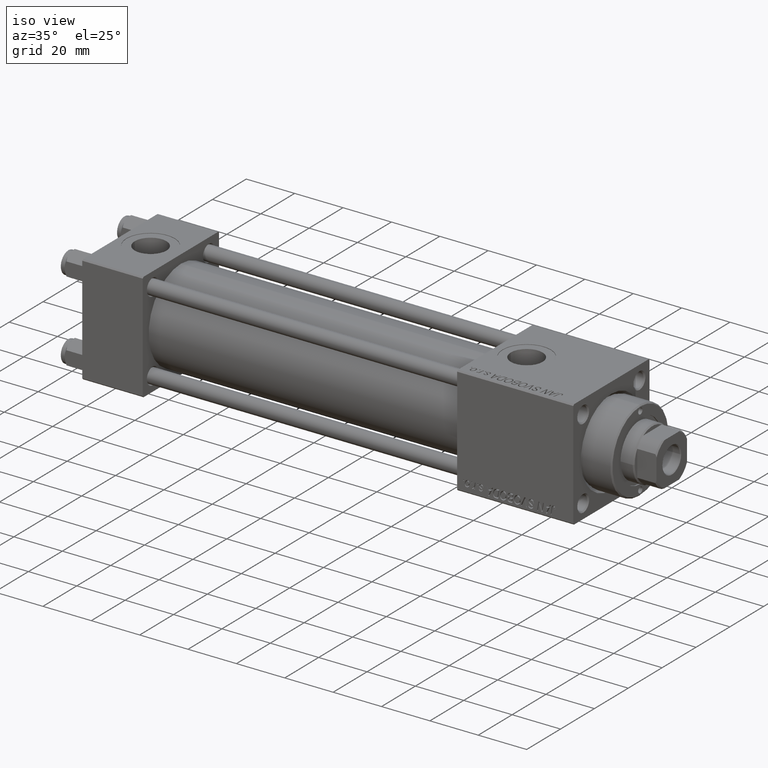
[diagram: clean part render]
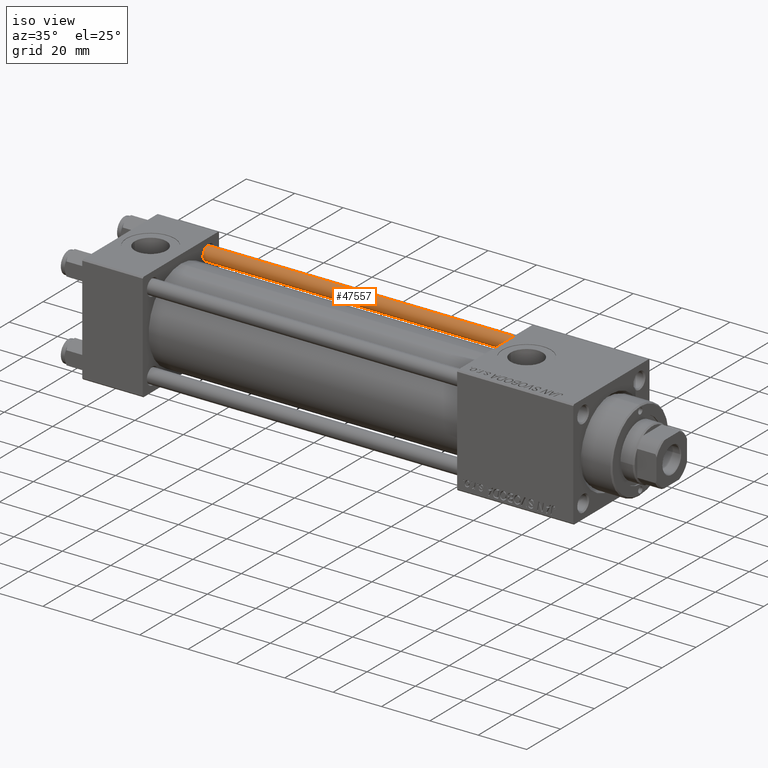
[diagram: same view with one face highlighted and labeled with its STEP entity id]
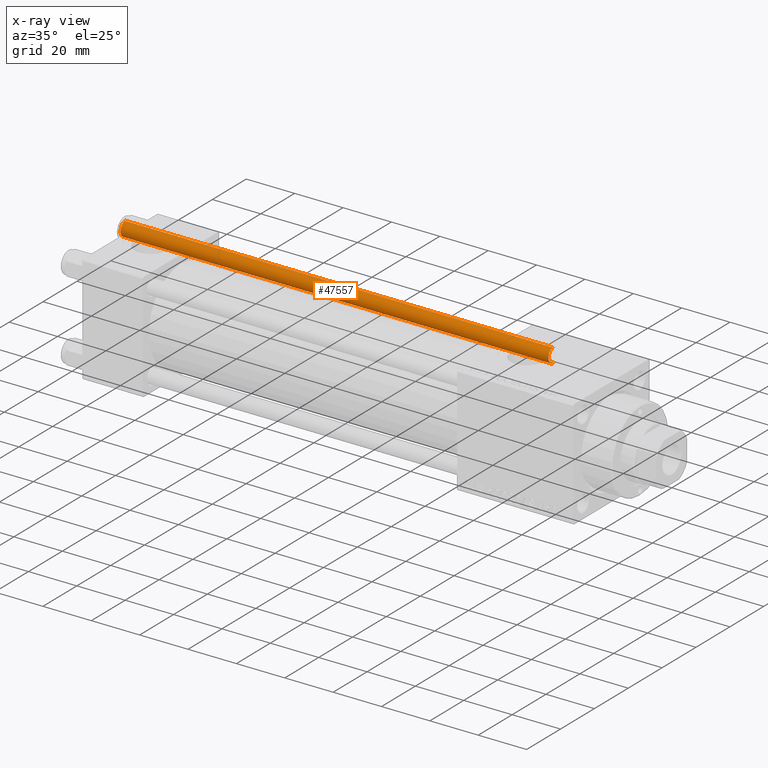
[diagram: x-ray of the same camera — body ghosted, the highlighted face saturated]
A machine part, iso view. The second image highlights one B-rep face of the part: STEP entity #47557.
The next image is the same camera in x-ray: the body ghosted, the highlighted face saturated — about 0% of this face is hidden behind the body in this view.
In plain terms, the highlighted cylindrical surface (edge-blend (fillet) strip) has radius 3 mm, axis along (-1, 0, 0).
Its self-contained STEP definition (entity closure, byte-faithful):
#475 = CARTESIAN_POINT ( 'NONE',  ( -3.000000000000000444, 0.000000000000000000, 177.5000000000000000 ) ) ;
#2240 = CIRCLE ( 'NONE', #34248, 3.000000000000000444 ) ;
#3226 = DIRECTION ( 'NONE',  ( -0.000000000000000000, -0.000000000000000000, -1.000000000000000000 ) ) ;
#3971 = ORIENTED_EDGE ( 'NONE', *, *, #14615, .T. ) ;
#4497 = VERTEX_POINT ( 'NONE', #43132 ) ;
#4604 = VERTEX_POINT ( 'NONE', #19790 ) ;
#5770 = AXIS2_PLACEMENT_3D ( 'NONE', #23900, #28484, #52554 ) ;
#7306 = VECTOR ( 'NONE', #37094, 1000.000000000000000 ) ;
#9086 = CYLINDRICAL_SURFACE ( 'NONE', #11672, 3.000000000000000444 ) ;
#11373 = EDGE_CURVE ( 'NONE', #25501, #14514, #45462, .T. ) ;
#11672 = AXIS2_PLACEMENT_3D ( 'NONE', #34007, #21546, #12084 ) ;
#12084 = DIRECTION ( 'NONE',  ( -1.000000000000000000, 0.000000000000000000, 0.000000000000000000 ) ) ;
#14514 = VERTEX_POINT ( 'NONE', #53017 ) ;
#14615 = EDGE_CURVE ( 'NONE', #14514, #4604, #2240, .T. ) ;
#17169 = EDGE_LOOP ( 'NONE', ( #22828, #39077, #49642, #3971 ) ) ;
#19790 = CARTESIAN_POINT ( 'NONE',  ( 3.000000000000000444, 3.673940397442060361E-16, 0.5000000000000281997 ) ) ;
#21169 = EDGE_CURVE ( 'NONE', #4497, #4604, #43820, .T. ) ;
#21546 = DIRECTION ( 'NONE',  ( -0.000000000000000000, -0.000000000000000000, -1.000000000000000000 ) ) ;
#22230 = VECTOR ( 'NONE', #3226, 1000.000000000000000 ) ;
#22828 = ORIENTED_EDGE ( 'NONE', *, *, #21169, .F. ) ;
#23900 = CARTESIAN_POINT ( 'NONE',  ( 0.000000000000000000, 0.000000000000000000, 177.5000000000000000 ) ) ;
#25501 = VERTEX_POINT ( 'NONE', #475 ) ;
#28484 = DIRECTION ( 'NONE',  ( 0.000000000000000000, 0.000000000000000000, -1.000000000000000000 ) ) ;
#31083 = CARTESIAN_POINT ( 'NONE',  ( 0.000000000000000000, 0.000000000000000000, 0.5000000000000281997 ) ) ;
#31343 = DIRECTION ( 'NONE',  ( 1.000000000000000000, 0.000000000000000000, 0.000000000000000000 ) ) ;
#32208 = CARTESIAN_POINT ( 'NONE',  ( 3.000000000000000444, 3.673940397442060361E-16, 178.0000000000000000 ) ) ;
#33562 = CARTESIAN_POINT ( 'NONE',  ( -3.000000000000000444, 0.000000000000000000, 178.0000000000000000 ) ) ;
#34007 = CARTESIAN_POINT ( 'NONE',  ( 0.000000000000000000, 0.000000000000000000, 178.0000000000000000 ) ) ;
#34248 = AXIS2_PLACEMENT_3D ( 'NONE', #31083, #47569, #31343 ) ;
#37094 = DIRECTION ( 'NONE',  ( -0.000000000000000000, -0.000000000000000000, -1.000000000000000000 ) ) ;
#39077 = ORIENTED_EDGE ( 'NONE', *, *, #51756, .T. ) ;
#42079 = CIRCLE ( 'NONE', #5770, 3.000000000000000444 ) ;
#43132 = CARTESIAN_POINT ( 'NONE',  ( 3.000000000000000444, 3.673940397442060361E-16, 177.5000000000000000 ) ) ;
#43820 = LINE ( 'NONE', #32208, #22230 ) ;
#45462 = LINE ( 'NONE', #33562, #7306 ) ;
#46163 = FACE_OUTER_BOUND ( 'NONE', #17169, .T. ) ;
#47557 = ADVANCED_FACE ( 'NONE', ( #46163 ), #9086, .T. ) ;
#47569 = DIRECTION ( 'NONE',  ( -0.000000000000000000, -0.000000000000000000, 1.000000000000000000 ) ) ;
#49642 = ORIENTED_EDGE ( 'NONE', *, *, #11373, .T. ) ;
#51756 = EDGE_CURVE ( 'NONE', #4497, #25501, #42079, .T. ) ;
#52554 = DIRECTION ( 'NONE',  ( 1.000000000000000000, 0.000000000000000000, 0.000000000000000000 ) ) ;
#53017 = CARTESIAN_POINT ( 'NONE',  ( -3.000000000000000444, 0.000000000000000000, 0.5000000000000281997 ) ) ;